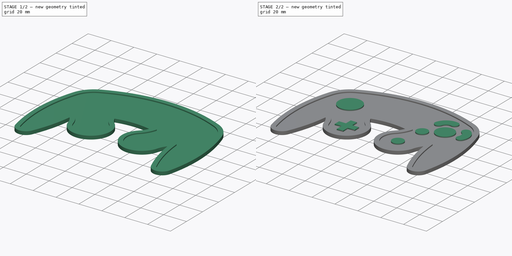
[diagram: build sequence overview — one tinted view per stage of 2, left to right]
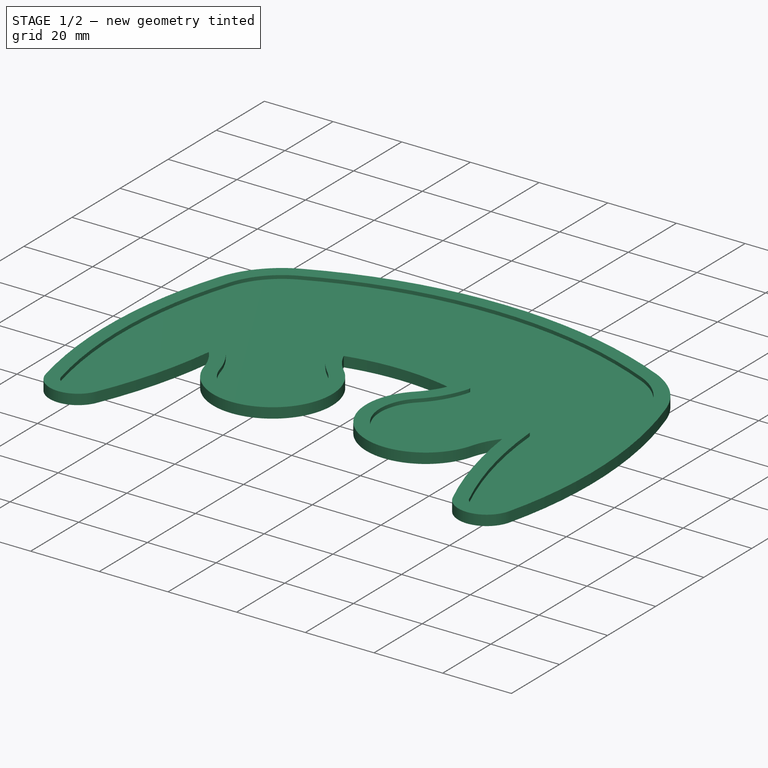
[diagram: stage 1 of 2 — iso view after this stage's code; geometry added in this stage tinted green]
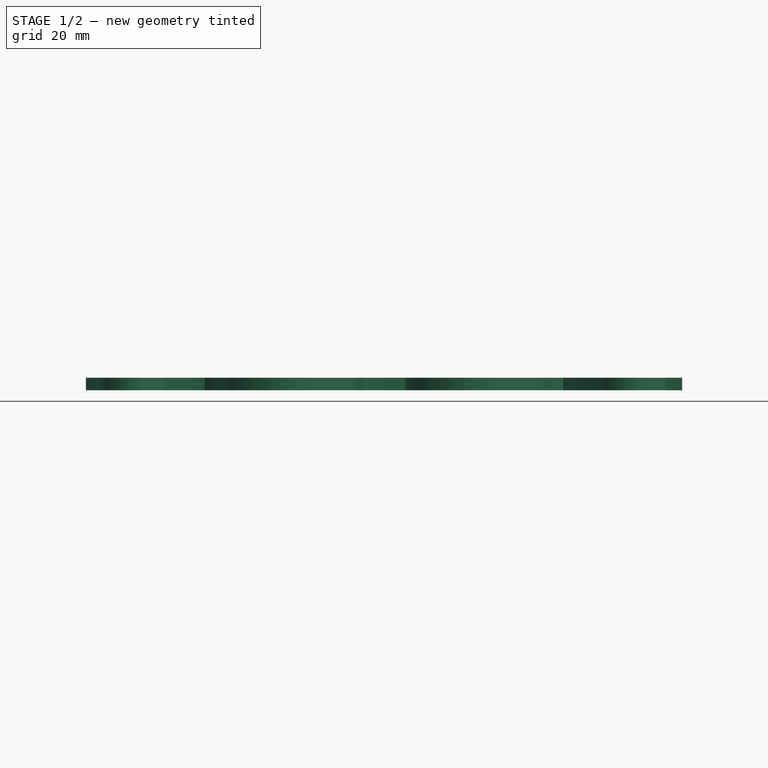
[diagram: stage 1 of 2 — front view after this stage's code; geometry added in this stage tinted green]
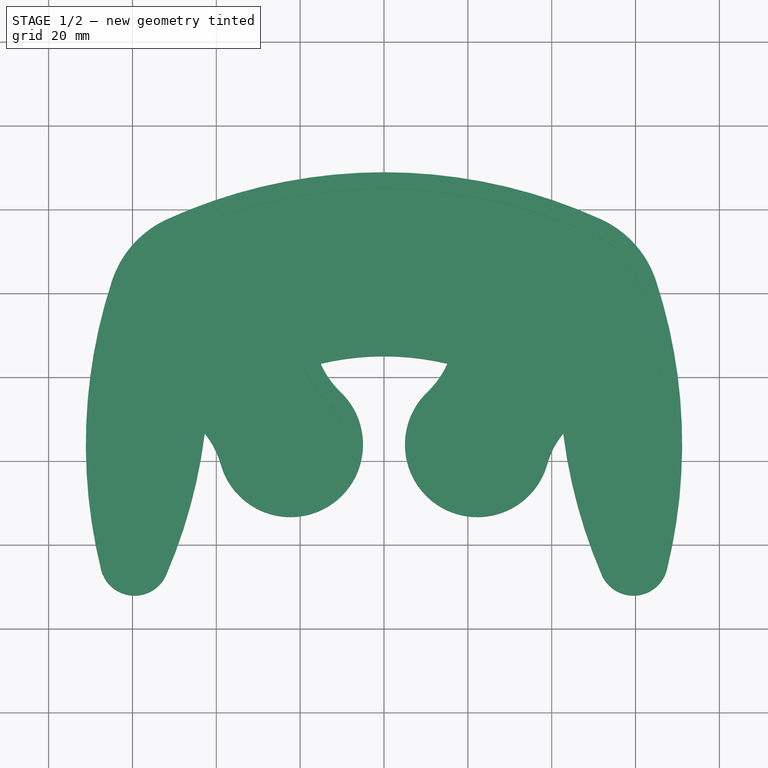
[diagram: stage 1 of 2 — top view after this stage's code; geometry added in this stage tinted green]
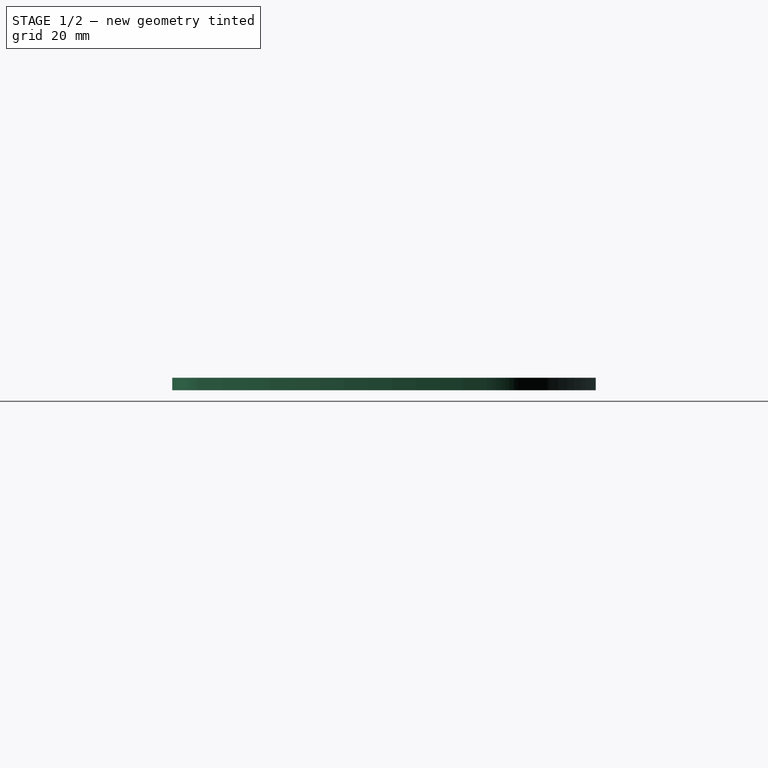
[diagram: stage 1 of 2 — right view after this stage's code; geometry added in this stage tinted green]
FCSTD DOCUMENT  (FreeCAD 0.21R33771 (Git))
Label: GameCube Icon
License: All rights reserved
LicenseURL: http://en.wikipedia.org/wiki/All_rights_reserved
objects: Sketcher::SketchObject×3, PartDesign::Pad×2, PartDesign::Pocket×1, PartDesign::Body×1
note: 10 computed .brp shape members not serialized (recipe doc carries the construction recipe); baked Part::Feature solids carry a one-line shape summary decoded from their .brp

FEATURE [Sketcher::SketchObject] Sketch
  FullyConstrained = true
  MapMode = 5
  Support = -> [XY_Plane]
  sketch-geometry (44):
    g0: Circle CenterX=-41.5 CenterY=15.2941 CenterZ=0 NormalX=0 NormalY=0 NormalZ=1 AngleXU=0 Radius=24.625
    g1: Circle CenterX=41.5 CenterY=15.2941 CenterZ=0 NormalX=0 NormalY=0 NormalZ=1 AngleXU=0 Radius=24.625
    g2: Circle CenterX=-22.3 CenterY=-16.0552 CenterZ=0 NormalX=0 NormalY=0 NormalZ=1 AngleXU=0 Radius=17.3
    g3: Circle CenterX=22.3 CenterY=-16.0552 CenterZ=0 NormalX=0 NormalY=0 NormalZ=1 AngleXU=0 Radius=17.3
    g4: LineSegment StartX=-41.5 StartY=15.2941 StartZ=0 EndX=41.5 EndY=15.2941 EndZ=0
    g5: LineSegment StartX=-41.5 StartY=15.2941 StartZ=0 EndX=-22.3 EndY=-16.0552 EndZ=0
    g6: LineSegment StartX=-22.3 StartY=-16.0552 StartZ=0 EndX=22.3 EndY=-16.0552 EndZ=0
    g7: LineSegment StartX=22.3 StartY=-16.0552 StartZ=0 EndX=41.5 EndY=15.2941 EndZ=0
    g8: LineSegment StartX=-5 StartY=-16.0552 StartZ=0 EndX=5 EndY=-16.0552 EndZ=0
    g9: ArcOfCircle CenterX=-1.13e-14 CenterY=-76.1 CenterZ=0 NormalX=0 NormalY=0 NormalZ=1 AngleXU=0 Radius=125 StartAngle=1.14456 EndAngle=1.99704
    g10: LineSegment StartX=-16.875 StartY=15.2941 StartZ=0 EndX=16.875 EndY=15.2941 EndZ=0
    g11: LineSegment StartX=0 StartY=48.9 StartZ=0 EndX=0 EndY=5 EndZ=0
    g12: ArcOfCircle CenterX=0 CenterY=-60.25 CenterZ=0 NormalX=0 NormalY=0 NormalZ=1 AngleXU=0 Radius=65.25 StartAngle=1.33707 EndAngle=1.80452
    g13: ArcOfCircle CenterX=-4.60996 CenterY=12.035 CenterZ=0 NormalX=0 NormalY=0 NormalZ=1 AngleXU=0 Radius=21.6 StartAngle=5.47633 EndAngle=6.35375
    g14: ArcOfCircle CenterX=4.60996 CenterY=12.035 CenterZ=0 NormalX=0 NormalY=0 NormalZ=1 AngleXU=0 Radius=21.6 StartAngle=3.07103 EndAngle=3.94845
    g15: LineSegment StartX=22.3 StartY=-33.3552 StartZ=0 EndX=22.3 EndY=46.8948 EndZ=0
    g16: LineSegment StartX=-16.9363 StartY=13.558 StartZ=0 EndX=-10.3323 EndY=-3.56265 EndZ=0
    g17: LineSegment StartX=0 StartY=5 StartZ=0 EndX=0 EndY=0 EndZ=0
    g18: Circle CenterX=-59.5 CenterY=-43.85 CenterZ=0 NormalX=0 NormalY=0 NormalZ=1 AngleXU=0 Radius=8.25
    g19: Circle CenterX=59.5 CenterY=-43.85 CenterZ=0 NormalX=0 NormalY=0 NormalZ=1 AngleXU=0 Radius=8.25
    g20: ArcOfCircle CenterX=-58.3777 CenterY=-26.21 CenterZ=0 NormalX=0 NormalY=0 NormalZ=1 AngleXU=0 Radius=20.1796 StartAngle=0.274371 EndAngle=1.18457
    g21: ArcOfCircle CenterX=58.3777 CenterY=-26.21 CenterZ=0 NormalX=0 NormalY=0 NormalZ=1 AngleXU=0 Radius=20.1796 StartAngle=1.95702 EndAngle=2.86722
    g22: LineSegment StartX=-59.5 StartY=-43.85 StartZ=0 EndX=59.5 EndY=-43.85 EndZ=0
    g23: LineSegment StartX=15.1121 StartY=3.22588 StartZ=0 EndX=41.6934 EndY=-14.8588 EndZ=0
    g24: ArcOfCircle CenterX=-53.8764 CenterY=-15.9867 CenterZ=0 NormalX=0 NormalY=0 NormalZ=1 AngleXU=0 Radius=125 StartAngle=6.0422 EndAngle=6.6001
    g25: ArcOfCircle CenterX=53.8764 CenterY=-15.9867 CenterZ=0 NormalX=0 NormalY=0 NormalZ=1 AngleXU=0 Radius=125 StartAngle=2.82467 EndAngle=3.38258
    g26: LineSegment StartX=-59.5 StartY=-43.85 StartZ=0 EndX=-41.5 EndY=15.2941 EndZ=0
    g27: ArcOfCircle CenterX=-166.76 CenterY=2.25669 CenterZ=0 NormalX=0 NormalY=0 NormalZ=1 AngleXU=0 Radius=125 StartAngle=5.87721 EndAngle=6.15725
    g28: ArcOfCircle CenterX=166.76 CenterY=2.25669 CenterZ=0 NormalX=0 NormalY=0 NormalZ=1 AngleXU=0 Radius=125 StartAngle=3.26752 EndAngle=3.54757
    g29: LineSegment StartX=0 StartY=48.9 StartZ=0 EndX=-70.41 EndY=48.9 EndZ=0
    g30: LineSegment StartX=-70.41 StartY=48.9 StartZ=0 EndX=-70.41 EndY=-52.1 EndZ=0
    g31: LineSegment StartX=-70.41 StartY=-52.1 StartZ=0 EndX=59.5 EndY=-52.1 EndZ=0
    g32: LineSegment StartX=-67.75 StartY=-43.85 StartZ=0 EndX=67.75 EndY=-43.85 EndZ=0
    g33: LineSegment StartX=-42.75 StartY=-13.4432 StartZ=0 EndX=42.75 EndY=-13.4432 EndZ=0
    g34: ArcOfCircle CenterX=-58.3777 CenterY=-26.21 CenterZ=0 NormalX=0 NormalY=0 NormalZ=1 AngleXU=0 Radius=20.1796 StartAngle=0.274371 EndAngle=0.684981
    g35: ArcOfCircle CenterX=-22.3 CenterY=-16.0552 CenterZ=0 NormalX=0 NormalY=0 NormalZ=1 AngleXU=0 Radius=17.3 StartAngle=3.41596 EndAngle=7.09004
    g36: ArcOfCircle CenterX=4.60996 CenterY=12.035 CenterZ=0 NormalX=0 NormalY=0 NormalZ=1 AngleXU=0 Radius=21.6 StartAngle=3.56167 EndAngle=3.94845
    g37: ArcOfCircle CenterX=-4.60996 CenterY=12.035 CenterZ=0 NormalX=0 NormalY=0 NormalZ=1 AngleXU=0 Radius=21.6 StartAngle=5.47633 EndAngle=5.86311
    g38: ArcOfCircle CenterX=22.3 CenterY=-16.0552 CenterZ=0 NormalX=0 NormalY=0 NormalZ=1 AngleXU=0 Radius=17.3 StartAngle=2.33474 EndAngle=6.00881
    g39: ArcOfCircle CenterX=58.3777 CenterY=-26.21 CenterZ=0 NormalX=0 NormalY=0 NormalZ=1 AngleXU=0 Radius=20.1796 StartAngle=2.45661 EndAngle=2.86722
    g40: ArcOfCircle CenterX=59.5 CenterY=-43.85 CenterZ=0 NormalX=0 NormalY=0 NormalZ=1 AngleXU=0 Radius=8.25 StartAngle=3.54757 EndAngle=6.0422
    g41: ArcOfCircle CenterX=41.5 CenterY=15.2941 CenterZ=0 NormalX=0 NormalY=0 NormalZ=1 AngleXU=0 Radius=24.625 StartAngle=0.316918 EndAngle=1.14456
    g42: ArcOfCircle CenterX=-41.5 CenterY=15.2941 CenterZ=0 NormalX=0 NormalY=0 NormalZ=1 AngleXU=0 Radius=24.625 StartAngle=1.99704 EndAngle=2.82467
    g43: ArcOfCircle CenterX=-59.5 CenterY=-43.85 CenterZ=0 NormalX=0 NormalY=0 NormalZ=1 AngleXU=0 Radius=8.25 StartAngle=3.38258 EndAngle=5.87721
  constraints (129):
    c: Diameter(g0) = 49.25
    c: Equal(g0,g1)
    c: Coincident(g4,g0)
    c: Coincident(g4,g1)
    c: Symmetric(g0,g1,g-2)
    c: Diameter(g3) = 34.6
    c: Equal(g2,g3)
    c: Coincident(g5,g0)
    c: Coincident(g5,g2)
    c: Coincident(g6,g2)
    c: Coincident(g6,g3)
    c: Coincident(g7,g3)
    c: Coincident(g7,g1)
    c: Symmetric(g2,g3,g-2)
    c: PointOnObject(g8,g2)
    c: Horizontal(g8)
    c: PointOnObject(g8,g3)
    c: Distance(g8) = 10
    c: Perpendicular(g2,g8)
    c: Tangent(g9,g0) = -1.5708
    c: Tangent(g9,g1) = -1.5708
    c: PointOnObject(g10,g0)
    c: PointOnObject(g10,g1)
    c: Horizontal(g10)
    c: Distance(g10) = 33.75
    c: Perpendicular(g0,g10)
    c: PointOnObject(g11,g9)
    c: Vertical(g11)
    c: PointOnObject(g12,g13)
    c: Tangent(g13,g3) = 1.5708
    c: Tangent(g13,g1) = 1.5708
    c: PointOnObject(g11,g12)
    c: Distance(g11) = 43.9
    c: PointOnObject(g11,g-2)
    c: Perpendicular(g12,g11)
    c: PointOnObject(g14,g2)
    c: Tangent(g14,g2)
    c: PointOnObject(g12,g14)
    c: Tangent(g14,g0) = 1.5708
    c: PointOnObject(g15,g3)
    c: PointOnObject(g15,g9)
    c: Vertical(g15)
    c: Perpendicular(g3,g15)
    c: Distance(g15) = 80.25
    c: Coincident(g16,g14)
    c: Coincident(g16,g14)
    c: Diameter(g9) = 250
    c: Coincident(g17,g11)
    c: Coincident(g17,g-1)
    c: Distance(g17) = 5
    c: Diameter(g12) = 130.5
    c: Tangent(g21,g3) = 1.5708
    c: Tangent(g21,g1) = 1.5708
    c: Tangent(g20,g0) = 1.5708
    c: Coincident(g22,g18)
    c: Coincident(g22,g19)
    c: Symmetric(g18,g19,g-2)
    c: Equal(g20,g21)
    c: Coincident(g23,g12)
    c: PointOnObject(g23,g21)
    c: Perpendicular(g21,g23)
    c: Distance(g23) = 32.15
    c: Tangent(g25,g0) = -1.5708
    c: Coincident(g26,g18)
    c: Coincident(g26,g0)
    c: Equal(g18,g19)
    c: Diameter(g19) = 16.5
    c: Equal(g25,g24)
    c: PointOnObject(g27,g20)
    c: PointOnObject(g28,g21)
    c: Tangent(g27,g18) = -1.5708
    c: Coincident(g29,g11)
    c: Horizontal(g29)
    c: Coincident(g30,g29)
    c: Vertical(g30)
    c: Coincident(g31,g30)
    c: Horizontal(g31)
    c: Tangent(g31,g19) = -1.5708
    c: Distance(g30) = 101
    c: PointOnObject(g32,g18)
    c: PointOnObject(g32,g19)
    c: Horizontal(g32)
    c: Perpendicular(g19,g32)
    c: Tangent(g24,g1) = -1.5708
    c: Equal(g27,g28)
    c: Coincident(g33,g27)
    c: Coincident(g33,g28)
    c: Horizontal(g33)
    c: Distance(g33) = 85.5
    c: Equal(g9,g25)
    c: Equal(g25,g27)
    c: Diameter(g14) = 43.2
    c: Equal(g14,g13)
    c: Coincident(g34,g27)
    c: Coincident(g34,g20)
    c: Tangent(g20,g2) = 1.5708
    c: Equal(g20,g34)
    c: Coincident(g35,g34)
    c: Coincident(g35,g14)
    c: Equal(g35,g2)
    c: Coincident(g36,g12)
    c: Coincident(g36,g35)
    c: Equal(g14,g36)
    c: Coincident(g37,g12)
    c: Coincident(g37,g13)
    c: Equal(g13,g37)
    c: Coincident(g38,g37)
    c: Coincident(g38,g21)
    c: Equal(g38,g3)
    c: Coincident(g39,g38)
    c: Coincident(g39,g28)
    c: Equal(g39,g21)
    c: Distance(g29) = 70.41
    c: Distance(g32) = 135.5
    c: Tangent(g24,g19) = -1.5708
    c: Tangent(g28,g19) = -1.5708
    c: Coincident(g40,g28)
    c: Coincident(g40,g24)
    c: Equal(g40,g19)
    c: Coincident(g41,g9)
    c: Coincident(g41,g24)
    c: Equal(g41,g1)
    c: Coincident(g42,g25)
    c: Coincident(g42,g9)
    c: Equal(g42,g0)
    c: Tangent(g25,g18) = -1.5708
    c: Coincident(g43,g25)
    c: Coincident(g43,g27)
    c: Equal(g43,g18)
FEATURE [PartDesign::Pad] Pad
  Direction = (0,0,1)
  Length = 3
  Length2 = 10
  Profile = -> Sketch
  ReferenceAxis = -> Sketch [N_Axis]
  Type = 0
FEATURE [Sketcher::SketchObject] Sketch001
  ExternalGeometry = -> [Pad]
  FullyConstrained = true
  MapMode = 5
  Placement = pos=(0,0,3) rot=(0,0,1;0rad)
  Support = -> [Pad]
  sketch-geometry (40):
    g0: LineSegment StartX=-67.5116 StartY=-45.8189 StartZ=0 EndX=-63.6272 EndY=-44.8643 EndZ=0
    g1: LineSegment StartX=-51.9206 StartY=-47.1081 StartZ=0 EndX=-55.5955 EndY=-45.5284 EndZ=0
    g2: LineSegment StartX=-38.9529 StartY=-20.7425 StartZ=0 EndX=-35.1025 EndY=-19.6588 EndZ=0
    g3: LineSegment StartX=-10.3323 StartY=-3.56265 StartZ=0 EndX=-13.0994 EndY=-6.45111 EndZ=0
    g4: LineSegment StartX=-15.1121 StartY=3.22588 StartZ=0 EndX=-16.0385 EndY=7.11712 EndZ=0
    g5: LineSegment StartX=15.1121 StartY=3.22588 StartZ=0 EndX=16.0385 EndY=7.11713 EndZ=0
    g6: LineSegment StartX=10.3323 StartY=-3.56265 StartZ=0 EndX=13.0994 EndY=-6.45111 EndZ=0
    g7: LineSegment StartX=38.9529 StartY=-20.7425 StartZ=0 EndX=35.1025 EndY=-19.6588 EndZ=0
    g8: LineSegment StartX=51.9206 StartY=-47.1081 StartZ=0 EndX=55.5955 EndY=-45.5284 EndZ=0
    g9: LineSegment StartX=67.5116 StartY=-45.8189 StartZ=0 EndX=63.6272 EndY=-44.8643 EndZ=0
    g10: LineSegment StartX=51.6812 StartY=37.7159 StartZ=0 EndX=50.0274 EndY=34.0738 EndZ=0
    g11: LineSegment StartX=64.8987 StartY=22.9683 StartZ=0 EndX=61.0979 EndY=21.7217 EndZ=0
    g12: LineSegment StartX=-51.6812 StartY=37.7159 StartZ=0 EndX=-50.0274 EndY=34.0738 EndZ=0
    g13: LineSegment StartX=-64.8987 StartY=22.9683 StartZ=0 EndX=-61.0979 EndY=21.7217 EndZ=0
    g14: ArcOfCircle CenterX=-41.5 CenterY=15.2941 CenterZ=0 NormalX=0 NormalY=0 NormalZ=1 AngleXU=0 Radius=20.625 StartAngle=1.99704 EndAngle=2.82467
    g15: ArcOfCircle CenterX=41.5 CenterY=15.2941 CenterZ=0 NormalX=0 NormalY=0 NormalZ=1 AngleXU=0 Radius=20.625 StartAngle=0.316918 EndAngle=1.14456
    g16: ArcOfCircle CenterX=22.3 CenterY=-16.0552 CenterZ=0 NormalX=0 NormalY=0 NormalZ=1 AngleXU=0 Radius=13.3 StartAngle=2.33474 EndAngle=6.00881
    g17: ArcOfCircle CenterX=59.5 CenterY=-43.85 CenterZ=0 NormalX=0 NormalY=0 NormalZ=1 AngleXU=0 Radius=4.25 StartAngle=3.54757 EndAngle=6.0422
    g18: ArcOfCircle CenterX=-22.3 CenterY=-16.0552 CenterZ=0 NormalX=0 NormalY=0 NormalZ=1 AngleXU=0 Radius=13.3 StartAngle=3.41596 EndAngle=7.09004
    g19: ArcOfCircle CenterX=-59.5 CenterY=-43.85 CenterZ=0 NormalX=0 NormalY=0 NormalZ=1 AngleXU=0 Radius=4.25 StartAngle=3.38258 EndAngle=5.87721
    g20: ArcOfCircle CenterX=0 CenterY=-60.25 CenterZ=0 NormalX=0 NormalY=0 NormalZ=1 AngleXU=0 Radius=69.25 StartAngle=1.28797 EndAngle=1.85363
    g21: ArcOfCircle CenterX=53.8764 CenterY=-15.9867 CenterZ=0 NormalX=0 NormalY=0 NormalZ=1 AngleXU=0 Radius=121 StartAngle=2.82467 EndAngle=3.38258
    g22: ArcOfCircle CenterX=-4.4e-15 CenterY=-76.1 CenterZ=0 NormalX=0 NormalY=0 NormalZ=1 AngleXU=0 Radius=121 StartAngle=1.14456 EndAngle=1.99704
    g23: ArcOfCircle CenterX=-4.60996 CenterY=12.035 CenterZ=0 NormalX=0 NormalY=0 NormalZ=1 AngleXU=0 Radius=25.6 StartAngle=5.47633 EndAngle=6.00537
    g24: ArcOfCircle CenterX=4.60996 CenterY=12.035 CenterZ=0 NormalX=0 NormalY=0 NormalZ=1 AngleXU=0 Radius=25.6 StartAngle=3.41941 EndAngle=3.94845
    g25: ArcOfCircle CenterX=-58.3777 CenterY=-26.21 CenterZ=0 NormalX=0 NormalY=0 NormalZ=1 AngleXU=0 Radius=24.1796 StartAngle=0.274371 EndAngle=0.962252
    g26: ArcOfCircle CenterX=-166.76 CenterY=2.25669 CenterZ=0 NormalX=0 NormalY=0 NormalZ=1 AngleXU=0 Radius=121 StartAngle=5.87721 EndAngle=6.20566
    g27: ArcOfCircle CenterX=58.3777 CenterY=-26.21 CenterZ=0 NormalX=0 NormalY=0 NormalZ=1 AngleXU=0 Radius=24.1796 StartAngle=2.17934 EndAngle=2.86722
    g28: ArcOfCircle CenterX=166.76 CenterY=2.25669 CenterZ=0 NormalX=0 NormalY=0 NormalZ=1 AngleXU=0 Radius=121 StartAngle=3.21912 EndAngle=3.54757
    g29: ArcOfCircle CenterX=-53.8764 CenterY=-15.9867 CenterZ=0 NormalX=0 NormalY=0 NormalZ=1 AngleXU=0 Radius=121 StartAngle=6.0422 EndAngle=6.6001
    g30: LineSegment StartX=-46.7183 StartY=-12.9408 StartZ=0 EndX=-42.75 EndY=-13.4432 EndZ=0
    g31: LineSegment StartX=-42.75 StartY=-13.4432 StartZ=0 EndX=-39.6523 EndY=-10.9126 EndZ=0
    g32: LineSegment StartX=39.6523 StartY=-10.9126 StartZ=0 EndX=42.75 EndY=-13.4432 EndZ=0
    g33: LineSegment StartX=42.75 StartY=-13.4432 StartZ=0 EndX=46.7183 EndY=-12.9408 EndZ=0
    g34: LineSegment StartX=-15.1121 StartY=3.22588 StartZ=0 EndX=-18.7643 EndY=1.59456 EndZ=0
    g35: LineSegment StartX=15.1121 StartY=3.22588 StartZ=0 EndX=18.7643 EndY=1.59456 EndZ=0
    g36: ArcOfCircle CenterX=-19.0468 CenterY=5.2884 CenterZ=0 NormalX=0 NormalY=0 NormalZ=1 AngleXU=0 Radius=1 StartAngle=1.85363 EndAngle=3.41941
    g37: ArcOfCircle CenterX=19.0468 CenterY=5.2884 CenterZ=0 NormalX=0 NormalY=0 NormalZ=1 AngleXU=0 Radius=1 StartAngle=6.00537 EndAngle=7.57115
    g38: ArcOfCircle CenterX=-45.1265 CenterY=-7.19159 CenterZ=0 NormalX=0 NormalY=0 NormalZ=1 AngleXU=0 Radius=1 StartAngle=0.962252 EndAngle=3.06407
    g39: ArcOfCircle CenterX=45.1265 CenterY=-7.19159 CenterZ=0 NormalX=0 NormalY=0 NormalZ=1 AngleXU=0 Radius=1 StartAngle=0.0775225 EndAngle=2.17934
  constraints (104):
    c: Coincident(g0,g-4)
    c: Coincident(g1,g-4)
    c: Perpendicular(g-4,g0)
    c: Perpendicular(g-4,g1)
    c: Coincident(g2,g-5)
    c: Coincident(g3,g-5)
    c: Perpendicular(g-5,g2)
    c: Perpendicular(g-5,g3)
    c: Coincident(g4,g-6)
    c: Coincident(g5,g-6)
    c: Coincident(g6,g-7)
    c: Coincident(g7,g-7)
    c: Coincident(g8,g-8)
    c: Coincident(g9,g-8)
    c: Coincident(g10,g-9)
    c: Coincident(g11,g-9)
    c: Coincident(g12,g-3)
    c: Coincident(g13,g-3)
    c: Perpendicular(g-3,g12)
    c: Perpendicular(g-3,g13)
    c: Perpendicular(g-7,g6)
    c: Perpendicular(g-7,g7)
    c: Perpendicular(g-9,g10)
    c: Perpendicular(g-9,g11)
    c: Perpendicular(g-8,g8)
    c: Perpendicular(g-8,g9)
    c: Equal(g1,g2)
    c: Equal(g3,g4)
    c: Equal(g5,g6)
    c: Equal(g7,g8)
    c: Equal(g9,g11)
    c: Equal(g10,g12)
    c: Coincident(g14,g-3)
    c: Coincident(g14,g13)
    c: Coincident(g14,g12)
    c: Coincident(g15,g-9)
    c: Coincident(g15,g10)
    c: Coincident(g15,g11)
    c: Coincident(g16,g-7)
    c: Coincident(g16,g6)
    c: Coincident(g16,g7)
    c: Coincident(g17,g-8)
    c: Coincident(g17,g8)
    c: Coincident(g17,g9)
    c: Coincident(g18,g-5)
    c: Coincident(g18,g2)
    c: Coincident(g18,g3)
    c: Coincident(g19,g-4)
    c: Coincident(g19,g0)
    c: Coincident(g19,g1)
    c: Coincident(g20,g-6)
    c: Coincident(g21,g19)
    c: Coincident(g22,g14)
    c: Coincident(g29,g17)
    c: Tangent(g29,g15) = -1.5708
    c: Tangent(g22,g15) = -1.5708
    c: Tangent(g21,g14) = -1.5708
    c: Tangent(g26,g19) = -1.5708
    c: Tangent(g25,g18) = 1.5708
    c: Tangent(g24,g18) = 1.5708
    c: Tangent(g23,g16) = 1.5708
    c: Tangent(g27,g16) = 1.5708
    c: Tangent(g28,g17) = -1.5708
    c: Distance(g11) = 4
    c: Coincident(g30,g-10)
    c: Perpendicular(g-10,g30)
    c: Coincident(g31,g30)
    c: Perpendicular(g25,g31)
    c: Equal(g30,g31)
    c: Equal(g31,g2)
    c: Coincident(g32,g-11)
    c: Coincident(g33,g32)
    c: Perpendicular(g28,g33)
    c: Perpendicular(g27,g32)
    c: Equal(g33,g32)
    c: Equal(g32,g7)
    c: PointOnObject(g30,g26)
    c: PointOnObject(g31,g25)
    c: PointOnObject(g32,g27)
    c: PointOnObject(g33,g28)
    c: Coincident(g34,g4)
    c: Coincident(g35,g5)
    c: Equal(g35,g4)
    c: Equal(g4,g34)
    c: Equal(g5,g35)
    c: PointOnObject(g34,g24)
    c: PointOnObject(g4,g20)
    c: PointOnObject(g5,g20)
    c: PointOnObject(g35,g23)
    c: Perpendicular(g20,g4)
    c: Perpendicular(g24,g34)
    c: Perpendicular(g23,g35)
    c: Tangent(g20,g36) = -1.5708
    c: Tangent(g24,g36) = -1.5708
    c: Tangent(g20,g37) = -1.5708
    c: Tangent(g23,g37) = -1.5708
    c: Tangent(g26,g38) = 1.5708
    c: Tangent(g25,g38) = -1.5708
    c: Tangent(g27,g39) = -1.5708
    c: Tangent(g28,g39) = 1.5708
    c: Equal(g36,g38)
    c: Equal(g37,g39)
    c: Equal(g37,g36)
    c: Diameter(g37) = 2
FEATURE [PartDesign::Pocket] Pocket
  BaseFeature = -> Pad
  Direction = (0,0,-1)
  Length = 1
  Length2 = 5
  Profile = -> Sketch001
  ReferenceAxis = -> Sketch001 [N_Axis]
  Refine = true
  Type = 0
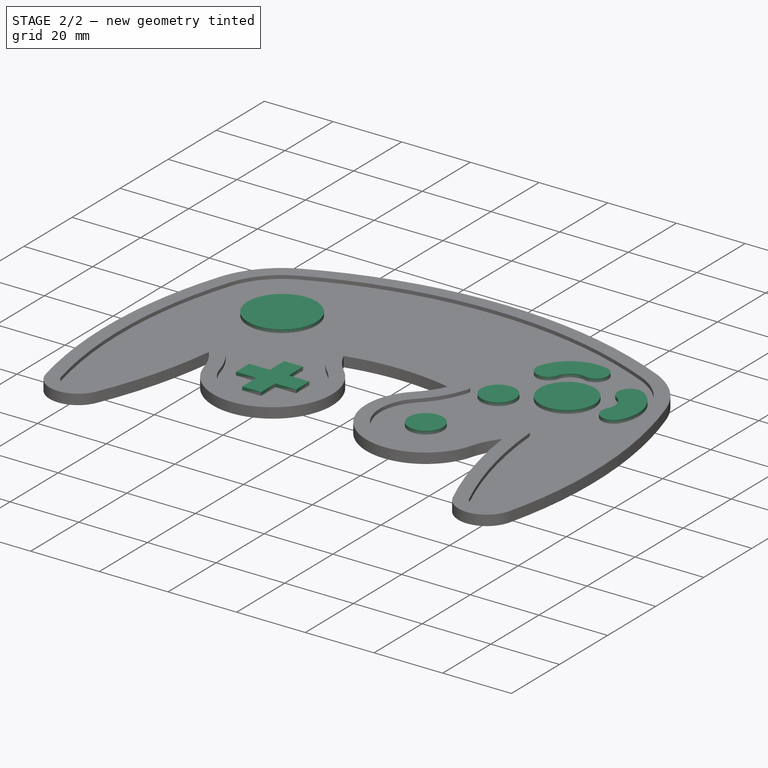
[diagram: stage 2 of 2 — iso view after this stage's code; geometry added in this stage tinted green]
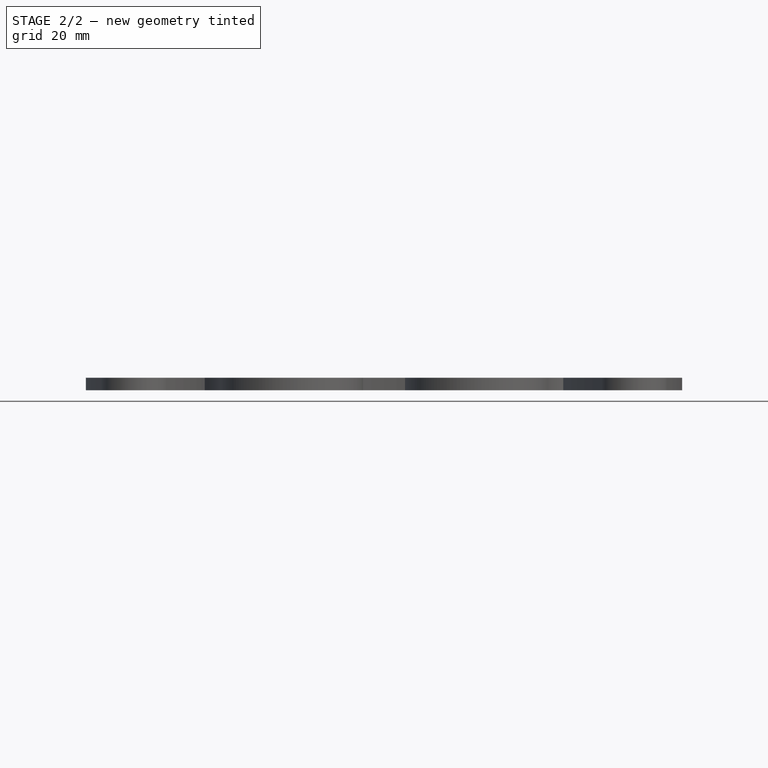
[diagram: stage 2 of 2 — front view after this stage's code; geometry added in this stage tinted green]
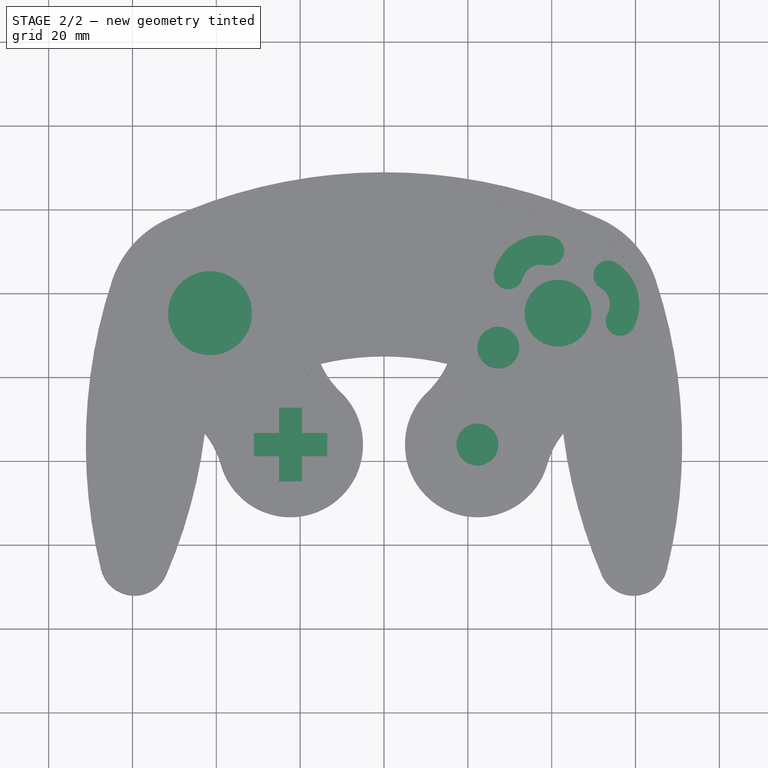
[diagram: stage 2 of 2 — top view after this stage's code; geometry added in this stage tinted green]
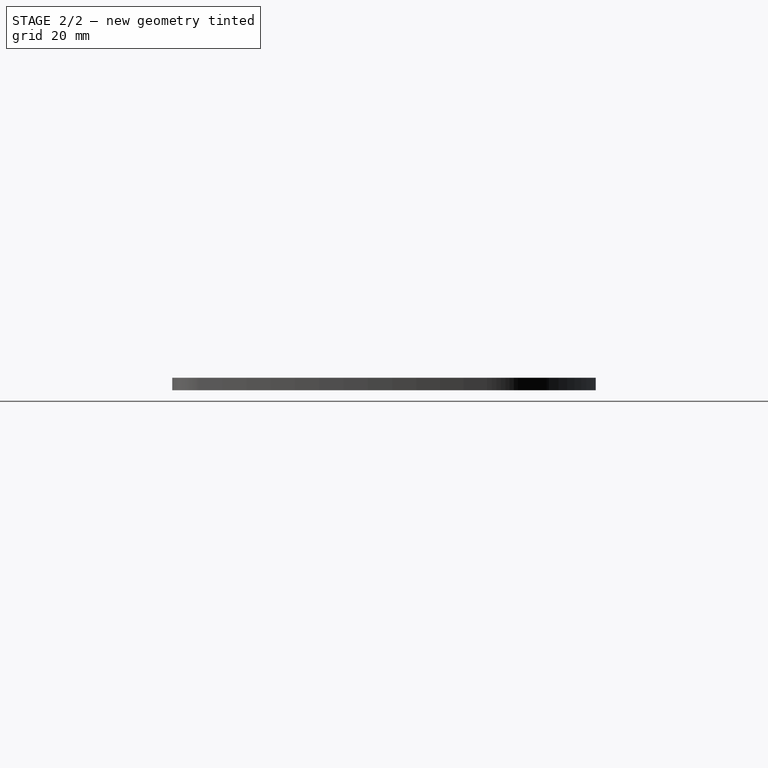
[diagram: stage 2 of 2 — right view after this stage's code; geometry added in this stage tinted green]
FEATURE [Sketcher::SketchObject] Sketch002
  ExternalGeometry = -> [Pocket]
  FullyConstrained = true
  MapMode = 5
  Placement = pos=(0,0,2) rot=(0,0,1;0rad)
  Support = -> [Pocket]
  sketch-geometry (36):
    g0: Circle CenterX=41.5 CenterY=15.2941 CenterZ=0 NormalX=0 NormalY=0 NormalZ=1 AngleXU=0 Radius=7.95
    g1: Circle CenterX=-41.5 CenterY=15.2941 CenterZ=0 NormalX=0 NormalY=0 NormalZ=1 AngleXU=0 Radius=10
    g2: Circle CenterX=27.2539 CenterY=7.06915 CenterZ=0 NormalX=0 NormalY=0 NormalZ=1 AngleXU=0 Radius=5
    g3: Circle CenterX=22.3 CenterY=-16.0552 CenterZ=0 NormalX=0 NormalY=0 NormalZ=1 AngleXU=0 Radius=5
    g4: ArcOfCircle CenterX=53.449 CenterY=24.3618 CenterZ=0 NormalX=0 NormalY=0 NormalZ=1 AngleXU=0 Radius=3.5 StartAngle=1.02371 EndAngle=4.1653
    g5: ArcOfCircle CenterX=56.3819 CenterY=13.4158 CenterZ=0 NormalX=0 NormalY=0 NormalZ=1 AngleXU=0 Radius=3.5 StartAngle=2.64148 EndAngle=5.78307
    g6: ArcOfCircle CenterX=49.1791 CenterY=17.3518 CenterZ=0 NormalX=0 NormalY=0 NormalZ=1 AngleXU=0 Radius=11.7081 StartAngle=5.78307 EndAngle=7.30689
    g7: ArcOfCircle CenterX=49.1791 CenterY=17.3518 CenterZ=0 NormalX=0 NormalY=0 NormalZ=1 AngleXU=0 Radius=4.70807 StartAngle=5.78307 EndAngle=7.30689
    g8: ArcOfCircle CenterX=29.6487 CenterY=24.4891 CenterZ=0 NormalX=0 NormalY=0 NormalZ=1 AngleXU=0 Radius=3.5 StartAngle=2.85631 EndAngle=5.9979
    g9: ArcOfCircle CenterX=37.525 CenterY=22.1791 CenterZ=0 NormalX=0 NormalY=0 NormalZ=1 AngleXU=0 Radius=11.7081 StartAngle=1.33248 EndAngle=2.85631
    g10: ArcOfCircle CenterX=37.525 CenterY=22.1791 CenterZ=0 NormalX=0 NormalY=0 NormalZ=1 AngleXU=0 Radius=4.70807 StartAngle=1.33248 EndAngle=2.85631
    g11: ArcOfCircle CenterX=39.4626 CenterY=30.1551 CenterZ=0 NormalX=0 NormalY=0 NormalZ=1 AngleXU=0 Radius=3.5 StartAngle=4.47408 EndAngle=7.61567
    g12: Circle CenterX=41.5 CenterY=15.2941 CenterZ=0 NormalX=0 NormalY=0 NormalZ=1 AngleXU=0 Radius=15
    g13: LineSegment StartX=31.584 StartY=9.56915 StartZ=0 EndX=34.6151 EndY=11.3191 EndZ=0
    g14: LineSegment StartX=33.0072 StartY=23.5041 StartZ=0 EndX=38.6364 EndY=26.7541 EndZ=0
    g15: LineSegment StartX=51.6283 StartY=21.3727 StartZ=0 EndX=53.3106 EndY=15.0941 EndZ=0
    g16: LineSegment StartX=41.5 StartY=15.2941 StartZ=0 EndX=49.45 EndY=15.2941 EndZ=0
    g17: LineSegment StartX=34.6151 StartY=11.3191 StartZ=0 EndX=41.5 EndY=15.2941 EndZ=0
    g18: LineSegment StartX=41.5 StartY=15.2941 StartZ=0 EndX=35.8218 EndY=25.1291 EndZ=0
    g19: LineSegment StartX=41.5 StartY=15.2941 StartZ=0 EndX=52.4694 EndY=18.2334 EndZ=0
    g20: LineSegment StartX=-25.05 StartY=-13.3052 StartZ=0 EndX=-25.05 EndY=-7.30524 EndZ=0
    g21: LineSegment StartX=-25.05 StartY=-7.30524 StartZ=0 EndX=-19.55 EndY=-7.30524 EndZ=0
    g22: LineSegment StartX=-19.55 StartY=-7.30524 StartZ=0 EndX=-19.55 EndY=-13.3052 EndZ=0
    g23: LineSegment StartX=-19.55 StartY=-13.3052 StartZ=0 EndX=-13.55 EndY=-13.3052 EndZ=0
    g24: LineSegment StartX=-13.55 StartY=-13.3052 StartZ=0 EndX=-13.55 EndY=-18.8052 EndZ=0
    g25: LineSegment StartX=-13.55 StartY=-18.8052 StartZ=0 EndX=-19.55 EndY=-18.8052 EndZ=0
    g26: LineSegment StartX=-19.55 StartY=-18.8052 StartZ=0 EndX=-19.55 EndY=-24.8052 EndZ=0
    g27: LineSegment StartX=-19.55 StartY=-24.8052 StartZ=0 EndX=-25.05 EndY=-24.8052 EndZ=0
    g28: LineSegment StartX=-25.05 StartY=-24.8052 StartZ=0 EndX=-25.05 EndY=-18.8052 EndZ=0
    g29: LineSegment StartX=-25.05 StartY=-18.8052 StartZ=0 EndX=-31.05 EndY=-18.8052 EndZ=0
    g30: LineSegment StartX=-31.05 StartY=-18.8052 StartZ=0 EndX=-31.05 EndY=-13.3052 EndZ=0
    g31: LineSegment StartX=-31.05 StartY=-13.3052 StartZ=0 EndX=-25.05 EndY=-13.3052 EndZ=0
    g32: LineSegment StartX=-25.05 StartY=-18.8052 StartZ=0 EndX=-19.55 EndY=-18.8052 EndZ=0
    g33: LineSegment StartX=-19.55 StartY=-18.8052 StartZ=0 EndX=-19.55 EndY=-13.3052 EndZ=0
    g34: LineSegment StartX=-19.55 StartY=-13.3052 StartZ=0 EndX=-25.05 EndY=-13.3052 EndZ=0
    g35: LineSegment StartX=-25.05 StartY=-13.3052 StartZ=0 EndX=-25.05 EndY=-18.8052 EndZ=0
  constraints (93):
    c: Coincident(g0,g-3)
    c: Coincident(g1,g-4)
    c: Diameter(g1) = 20
    c: Diameter(g3) = 10
    c: Diameter(g0) = 15.9
    c: Coincident(g7,g6)
    c: Tangent(g7,g4) = 1.5708
    c: Tangent(g6,g4) = -1.5708
    c: Tangent(g6,g5) = -1.5708
    c: Tangent(g7,g5) = 1.5708
    c: Coincident(g9,g10)
    c: Tangent(g10,g8) = 1.5708
    c: Tangent(g11,g10) = 1.5708
    c: Tangent(g11,g9) = -1.5708
    c: Diameter(g4) = 7
    c: Diameter(g8) = 7
    c: Tangent(g9,g8) = -1.5708
    c: Coincident(g12,g0)
    c: Diameter(g12) = 30
    c: PointOnObject(g5,g12)
    c: PointOnObject(g4,g12)
    c: PointOnObject(g11,g12)
    c: PointOnObject(g8,g12)
    c: PointOnObject(g9,g0)
    c: PointOnObject(g6,g0)
    c: PointOnObject(g13,g2)
    c: PointOnObject(g13,g0)
    c: Perpendicular(g0,g13)
    c: Perpendicular(g2,g13)
    c: Distance(g13) = 3.5
    c: Diameter(g2) = 10
    c: Coincident(g14,g8)
    c: Coincident(g14,g10)
    c: Distance(g14) = 6.5
    c: Coincident(g15,g4)
    c: Coincident(g15,g5)
    c: Equal(g14,g15)
    c: Coincident(g16,g0)
    c: PointOnObject(g16,g0)
    c: Horizontal(g16)
    c: Coincident(g17,g13)
    c: Coincident(g17,g0)
    c: Angle(g17,g16) = 2.61799
    c: Coincident(g18,g0)
    c: Coincident(g19,g0)
    c: Symmetric(g4,g5,g19)
    c: Symmetric(g10,g8,g18)
    c: Angle(g16,g18) = 2.0944
    c: Angle(g16,g19) = 0.261799
    c: Vertical(g20)
    c: Coincident(g20,g21)
    c: Horizontal(g21)
    c: Coincident(g21,g22)
    c: Vertical(g22)
    c: Coincident(g22,g23)
    c: Horizontal(g23)
    c: Coincident(g23,g24)
    c: Vertical(g24)
    c: Coincident(g24,g25)
    c: Horizontal(g25)
    c: Coincident(g25,g26)
    c: Vertical(g26)
    c: Coincident(g26,g27)
    c: Horizontal(g27)
    c: Coincident(g27,g28)
    c: Coincident(g28,g29)
    c: Horizontal(g29)
    c: Coincident(g29,g30)
    c: Vertical(g30)
    c: Coincident(g30,g31)
    c: Coincident(g31,g20)
    c: Horizontal(g31)
    c: Vertical(g28)
    c: Coincident(g28,g32)
    c: Coincident(g32,g25)
    c: Coincident(g32,g33)
    c: Coincident(g33,g22)
    c: Coincident(g33,g34)
    c: Coincident(g34,g20)
    c: Horizontal(g34)
    c: Coincident(g34,g35)
    c: Coincident(g35,g32)
    c: Vertical(g35)
    c: Vertical(g33)
    c: Horizontal(g32)
    c: Equal(g20,g28)
    c: Equal(g26,g25)
    c: Equal(g23,g29)
    c: Equal(g34,g33)
    c: Distance(g24) = 5.5
    c: DistanceX(g30,g23) = 17.5
    c: Symmetric(g20,g25,g-5)
    c: Coincident(g-6,g3)
FEATURE [PartDesign::Pad] Pad001
  BaseFeature = -> Pocket
  Direction = (0,0,1)
  Length = 1
  Length2 = 10
  Profile = -> Sketch002
  ReferenceAxis = -> Sketch002 [N_Axis]
  Refine = true
  Type = 0
FEATURE [PartDesign::Body] Body
  Group = -> [Sketch,Pad,Sketch001,Pocket,Sketch002,Pad001]
  Origin = -> Origin
  Tip = -> Pad001
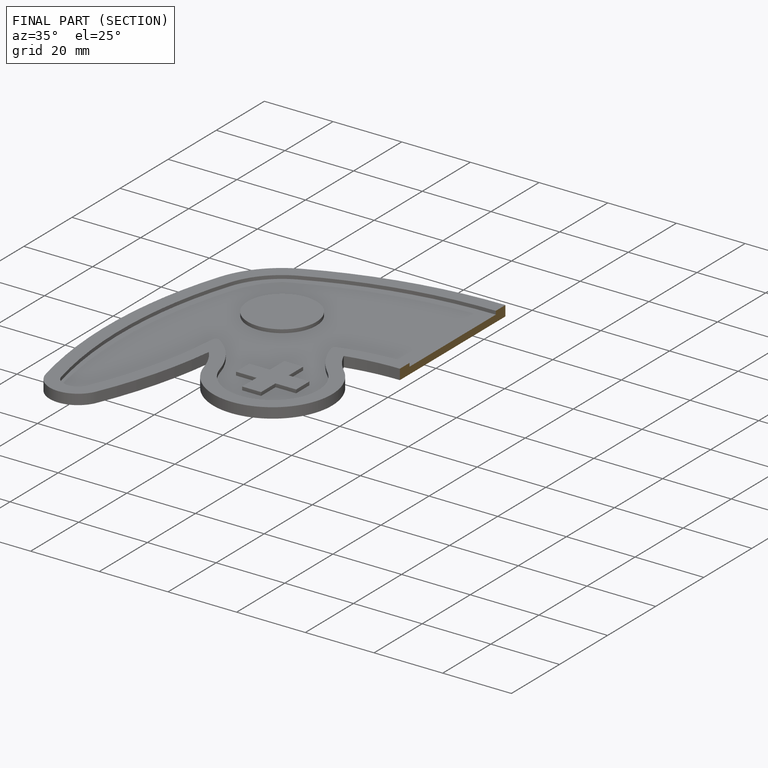
[diagram: finished part — half-section view (interior)]
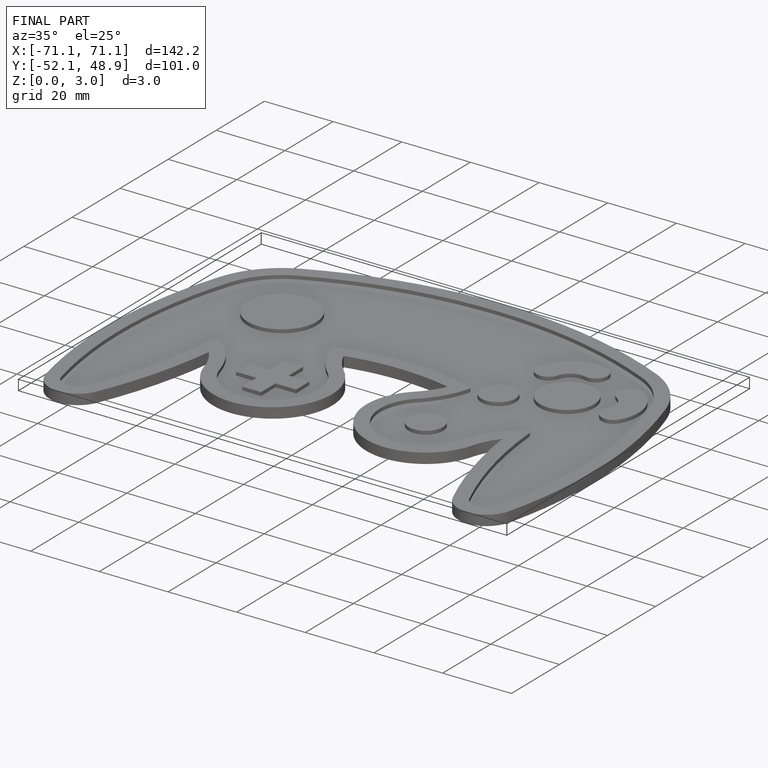
[diagram: finished part — iso view with bounding-box wireframe]
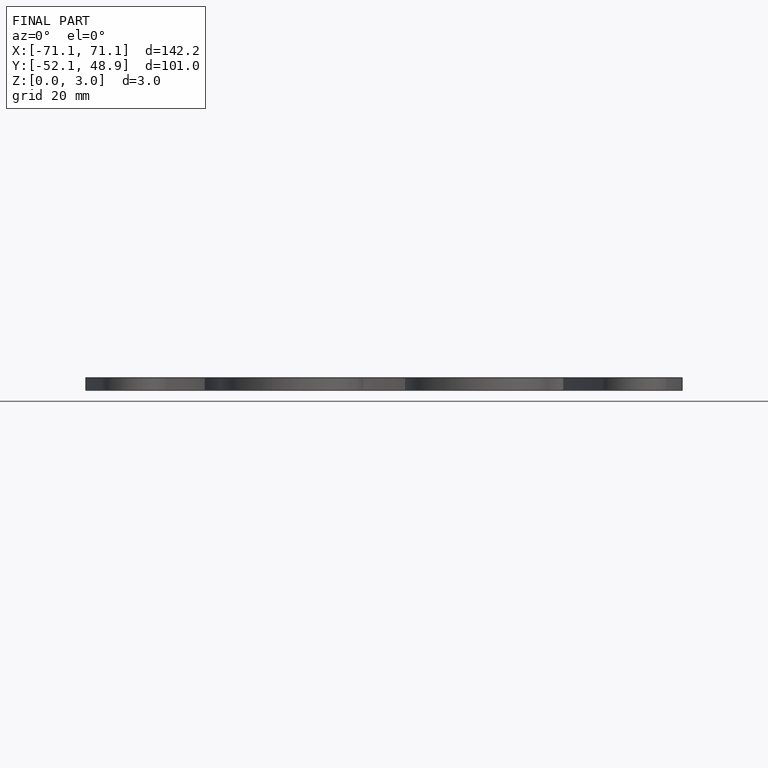
[diagram: finished part — front view with bounding-box wireframe]
